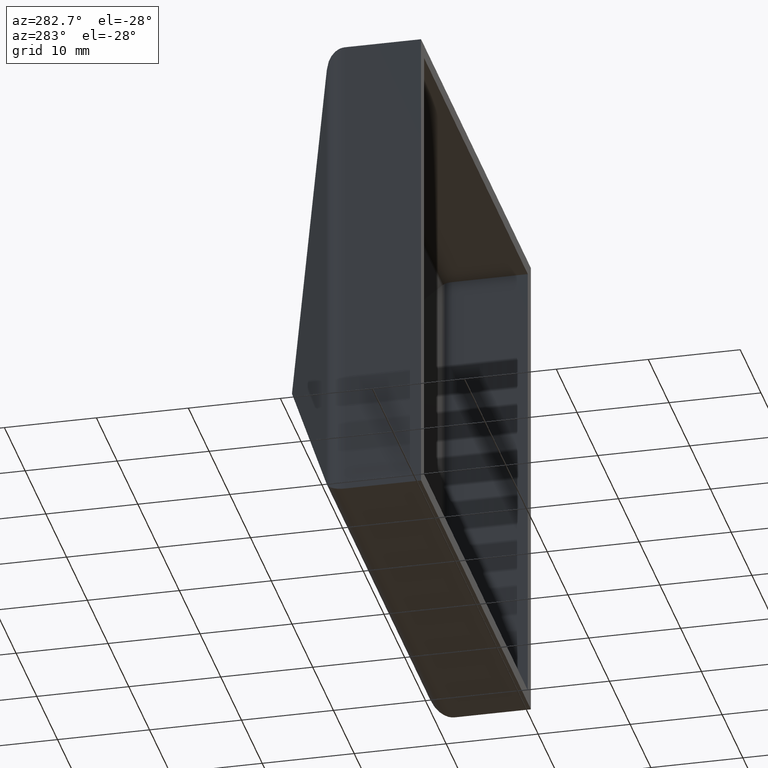
[diagram: clean part render]
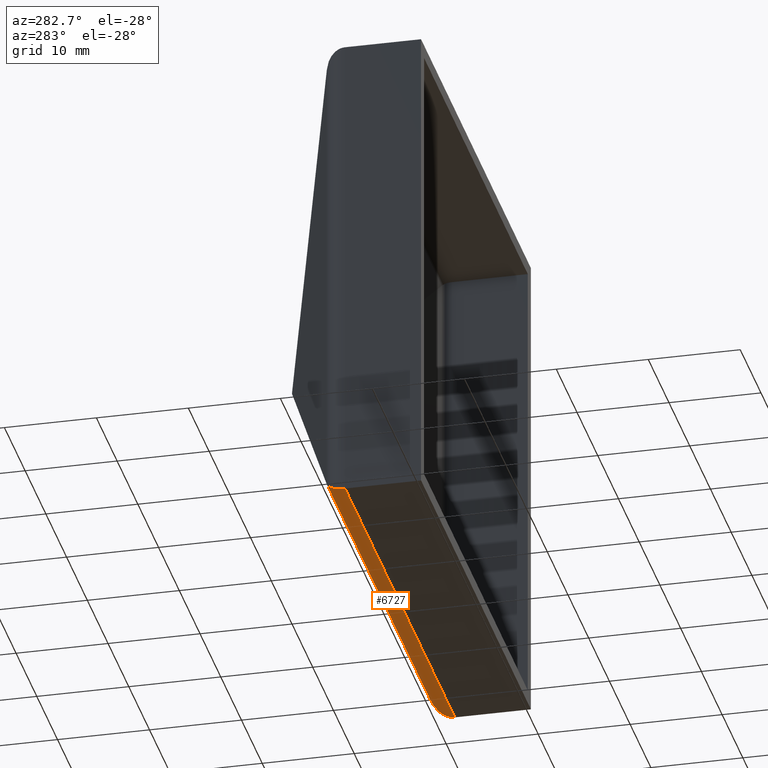
[diagram: same view with one face highlighted and labeled with its STEP entity id]
A machine part, auxiliary view. The second image highlights one B-rep face of the part: STEP entity #6727.
In plain terms, the highlighted cylindrical surface (edge-blend (fillet) strip) has radius 2.5 mm, axis along (1, -0, -0).
Its self-contained STEP definition (entity closure, byte-faithful):
#85 = CARTESIAN_POINT ( 'NONE',  ( -26.49999999999999645, 9.346632133441742596, -26.49999999999997868 ) ) ;
#681 = CARTESIAN_POINT ( 'NONE',  ( -26.50000000000002487, 10.61054293763361045, -24.88317557470179864 ) ) ;
#683 = AXIS2_PLACEMENT_3D ( 'NONE', #9539, #10737, #2328 ) ;
#1848 = CARTESIAN_POINT ( 'NONE',  ( -25.88876042945851452, 10.23081541641571590, -25.88876042945850742 ) ) ;
#1856 = VERTEX_POINT ( 'NONE', #5581 ) ;
#2028 = CARTESIAN_POINT ( 'NONE',  ( -26.50000000000002487, 8.271739631613602484, -26.49999999999998224 ) ) ;
#2242 = CARTESIAN_POINT ( 'NONE',  ( 26.50000000000000000, 9.346632133441739043, -26.50000000000000000 ) ) ;
#2290 = ORIENTED_EDGE ( 'NONE', *, *, #7248, .T. ) ;
#2328 = DIRECTION ( 'NONE',  ( 0.000000000000000000, 0.000000000000000000, -1.000000000000000000 ) ) ;
#2919 = DIRECTION ( 'NONE',  ( 1.000000000000000000, -0.000000000000000000, -4.440892098500625669E-16 ) ) ;
#3780 = CARTESIAN_POINT ( 'NONE',  ( -26.50000000000002487, 8.271739631613602484, -26.49999999999998224 ) ) ;
#3867 = EDGE_CURVE ( 'NONE', #5399, #1856, #10057, .T. ) ;
#4180 = EDGE_CURVE ( 'NONE', #8737, #7798, #5729, .T. ) ;
#4688 = ORIENTED_EDGE ( 'NONE', *, *, #4180, .T. ) ;
#4939 = CARTESIAN_POINT ( 'NONE',  ( 24.88317557470182351, 10.61054293763360867, -24.88317557470181995 ) ) ;
#5399 = VERTEX_POINT ( 'NONE', #11543 ) ;
#5502 = FACE_OUTER_BOUND ( 'NONE', #8059, .T. ) ;
#5581 = CARTESIAN_POINT ( 'NONE',  ( 26.50000000000000711, 8.271739631613602484, -26.50000000000000355 ) ) ;
#5729 =( BOUNDED_CURVE ( )  B_SPLINE_CURVE ( 3, ( #6588, #85, #1848, #11380 ),
 .UNSPECIFIED., .F., .F. ) 
 B_SPLINE_CURVE_WITH_KNOTS ( ( 4, 4 ),
 ( 3.141592653589793116, 4.351324550702120320 ),
 .UNSPECIFIED. ) 
 CURVE ( )  GEOMETRIC_REPRESENTATION_ITEM ( )  RATIONAL_B_SPLINE_CURVE ( ( 1.000000000000000000, 0.8817188890797190703, 0.8817188890797190703, 1.000000000000000000 ) ) 
 REPRESENTATION_ITEM ( '' )  );
#5901 = CARTESIAN_POINT ( 'NONE',  ( 26.50000000000000711, 8.271739631613602484, -26.50000000000000355 ) ) ;
#6108 = CYLINDRICAL_SURFACE ( 'NONE', #683, 2.499999999999998668 ) ;
#6229 = VECTOR ( 'NONE', #2919, 1000.000000000000000 ) ;
#6588 = CARTESIAN_POINT ( 'NONE',  ( -26.50000000000002487, 8.271739631613602484, -26.49999999999998224 ) ) ;
#6695 = VECTOR ( 'NONE', #9257, 1000.000000000000000 ) ;
#6727 = ADVANCED_FACE ( 'NONE', ( #5502 ), #6108, .T. ) ;
#7224 = ORIENTED_EDGE ( 'NONE', *, *, #9533, .F. ) ;
#7248 = EDGE_CURVE ( 'NONE', #7798, #5399, #8583, .T. ) ;
#7798 = VERTEX_POINT ( 'NONE', #9587 ) ;
#8059 = EDGE_LOOP ( 'NONE', ( #4688, #2290, #8408, #7224 ) ) ;
#8408 = ORIENTED_EDGE ( 'NONE', *, *, #3867, .T. ) ;
#8583 = LINE ( 'NONE', #681, #6695 ) ;
#8737 = VERTEX_POINT ( 'NONE', #2028 ) ;
#9005 = LINE ( 'NONE', #3780, #6229 ) ;
#9257 = DIRECTION ( 'NONE',  ( 1.000000000000000000, -0.000000000000000000, -4.440892098500625669E-16 ) ) ;
#9533 = EDGE_CURVE ( 'NONE', #8737, #1856, #9005, .T. ) ;
#9539 = CARTESIAN_POINT ( 'NONE',  ( -26.50000000000002487, 8.271739631613602484, -23.99999999999998224 ) ) ;
#9587 = CARTESIAN_POINT ( 'NONE',  ( -24.88317557470180574, 10.61054293763361045, -24.88317557470179864 ) ) ;
#10057 =( BOUNDED_CURVE ( )  B_SPLINE_CURVE ( 3, ( #4939, #11497, #2242, #5901 ),
 .UNSPECIFIED., .F., .F. ) 
 B_SPLINE_CURVE_WITH_KNOTS ( ( 4, 4 ),
 ( 1.931860756477468577, 3.141592653589793116 ),
 .UNSPECIFIED. ) 
 CURVE ( )  GEOMETRIC_REPRESENTATION_ITEM ( )  RATIONAL_B_SPLINE_CURVE ( ( 1.000000000000000000, 0.8817188890797196255, 0.8817188890797196255, 1.000000000000000000 ) ) 
 REPRESENTATION_ITEM ( '' )  );
#10737 = DIRECTION ( 'NONE',  ( 1.000000000000000000, -0.000000000000000000, -4.440892098500625669E-16 ) ) ;
#11380 = CARTESIAN_POINT ( 'NONE',  ( -24.88317557470180574, 10.61054293763361045, -24.88317557470179864 ) ) ;
#11497 = CARTESIAN_POINT ( 'NONE',  ( 25.88876042945851808, 10.23081541641570880, -25.88876042945852873 ) ) ;
#11543 = CARTESIAN_POINT ( 'NONE',  ( 24.88317557470182351, 10.61054293763360867, -24.88317557470181995 ) ) ;